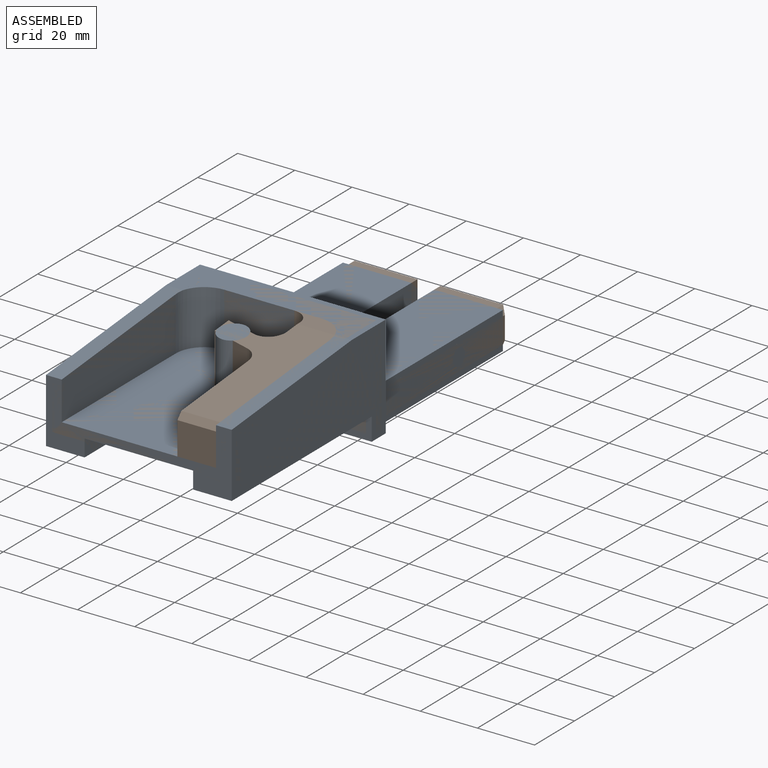
[diagram: assembled view]
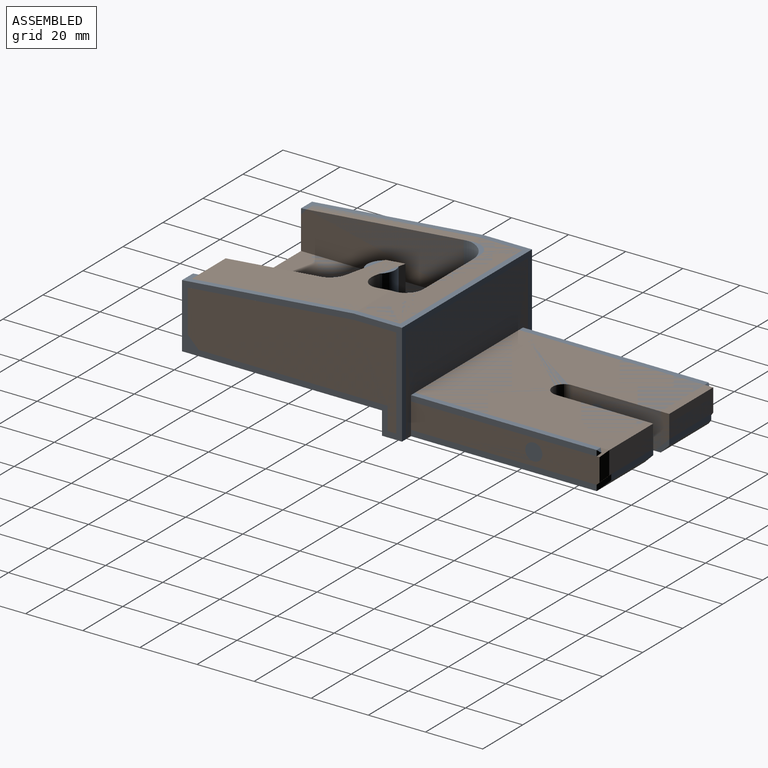
[diagram: assembled view, second angle]
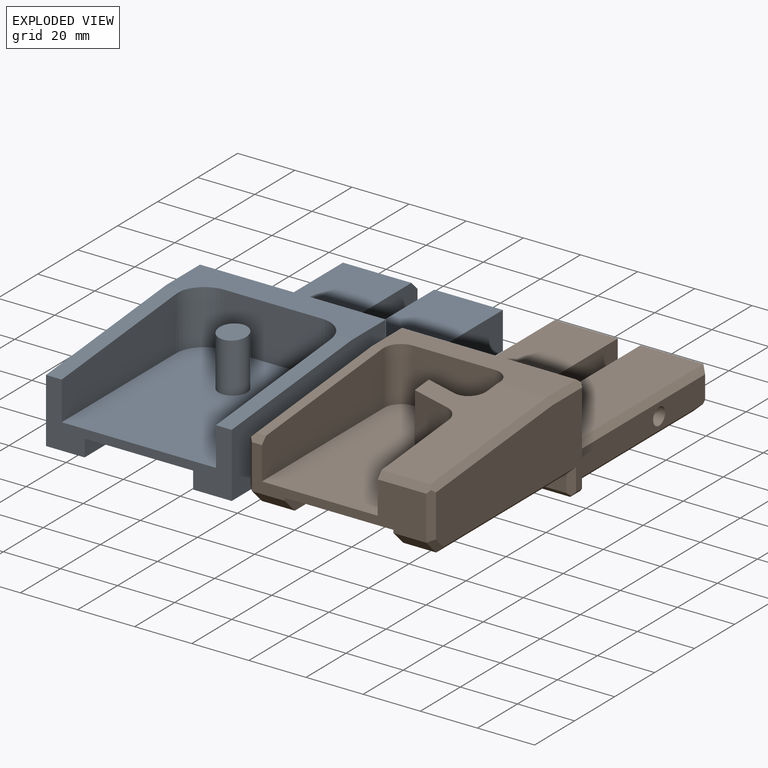
[diagram: exploded view]
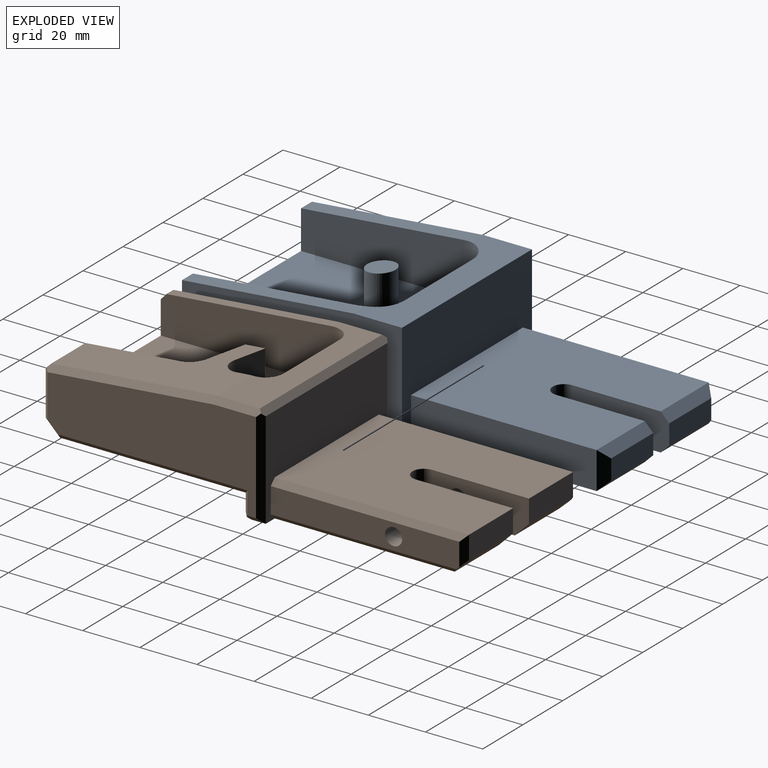
[diagram: exploded view, second angle]
ASSEMBLY  parts=2 mates=3
PART A: 38 faces, bbox 65x145x36 mm
  f0: plane 21x7mm, normal (0,1,0), area 147mm2, adj f3,f4,f28,f32
  f1: plane 72x65mm, normal (0,0,-1), area 3821.9mm2, adj f4,f9,f10,f13,f14,f23,f24,f27
  f2: plane 65x56mm, normal (0,0,1), area 3366.9mm2, adj f3,f10,f23,f24,f26,f31,f32,f33
  f3: plane 24x3mm, normal (0,0.71,0.71), area 95.5mm2, adj f0,f2,f28,f32
  f4: plane 24x3mm, normal (0,0.71,-0.71), area 95.5mm2, adj f0,f1,f28,f32
  f5: plane 21x7mm, normal (0,1,0), area 147mm2, adj f25,f26,f27,f33
  f6: plane 65x17mm, normal (0,0,1), area 769mm2, adj f7,f10,f11,f13,f14,f21,f34,f35
  f7: plane 60x5.96mm, normal (0,-0.09,1), area 331.8mm2, adj f6,f12,f13,f20,f35
  f8: plane 70x65mm, normal (0,0,-1), area 2635.9mm2, adj f9,f12,f13,f14,f15,f16,f17,f36
  f9: plane 65x8mm, normal (0,-1,0), area 520mm2, adj f1,f8,f13,f14
  f10: plane 65x36mm, normal (0,1,0), area 1612mm2, adj f1,f2,f6,f13,f14,f23,f24
  f11: plane 60x5.96mm, normal (0,-0.09,1), area 331.8mm2, adj f6,f12,f14,f19,f34
  f12: plane 65x22.5mm, normal (0,-1,0), area 505.5mm2, adj f7,f8,f11,f13,f14,f15,f17,f18
  f13: plane 77x36mm, normal (1,0,0), area 2047mm2, adj f1,f6,f7,f8,f9,f10,f12
  f14: plane 77x36mm, normal (-1,0,0), area 2047mm2, adj f1,f6,f8,f9,f10,f11,f12
  f15: plane 41.5x6mm, normal (1,0,0), area 249mm2, adj f8,f12,f18,f36
  f16: plane 18x6mm, normal (0,-1,0), area 108mm2, adj f8,f18,f36,f37
  f17: plane 41.5x6mm, normal (-1,0,0), area 249mm2, adj f8,f12,f18,f37
  f18: plane 51.5x38mm, normal (0,0,-1), area 1914.1mm2, adj f12,f15,f16,f17,f36,f37
  f19: plane 57x18.73mm, normal (1,0,0), area 918.4mm2, adj f11,f12,f22,f34
  f20: plane 57x18.73mm, normal (-1,0,0), area 918.4mm2, adj f7,f12,f22,f35
  f21: plane 34x19mm, normal (0,-1,0), area 646mm2, adj f6,f22,f34,f35
  f22: plane 67x54mm, normal (0,0,1), area 3496.5mm2, adj f12,f19,f20,f21,f30,f34,f35
  f23: plane 65x13mm, normal (1,0,0), area 845mm2, adj f1,f2,f10,f28
  f24: plane 65x13mm, normal (-1,0,0), area 845mm2, adj f1,f2,f10,f25
  f25: plane 13x3mm, normal (-0.71,0.71,0), area 42.4mm2, adj f5,f24,f26,f27
  f26: plane 24x3mm, normal (0,0.71,0.71), area 95.5mm2, adj f2,f5,f25,f33
  f27: plane 24x3mm, normal (0,0.71,-0.71), area 95.5mm2, adj f1,f5,f25,f33
  f28: plane 13x3mm, normal (0.71,0.71,0), area 42.4mm2, adj f0,f3,f4,f23
  f29: plane 10x10mm, normal (0,-0.09,1), area 78.9mm2, adj f30
  f30: cylinder r=5mm len=18.27mm, axis (0,0,-1), area 559.5mm2, adj f22,f29
  f31: cylinder r=4mm len=13mm, axis (0,0,-1), area 163.4mm2, adj f1,f2,f32,f33
  f32: plane 34x13mm, normal (-1,0,0), area 433mm2, adj f0,f1,f2,f3,f4,f31
  f33: plane 34x13mm, normal (1,0,0), area 433mm2, adj f1,f2,f5,f26,f27,f31
  f34: cylinder r=10mm len=19mm, axis (0,0,1), area 298mm2, adj f6,f11,f19,f21,f22
  f35: cylinder r=10mm len=19mm, axis (0,0,-1), area 298mm2, adj f6,f7,f20,f21,f22
  f36: cylinder r=10mm len=10mm, axis (0,0,1), area 94.2mm2, adj f8,f15,f16,f18
  f37: cylinder r=10mm len=10mm, axis (0,0,-1), area 94.2mm2, adj f8,f16,f17,f18
PART B: 68 faces, bbox 65.3x145.3x36.3 mm
  f0: plane 65x61mm, normal (0,0,-1), area 2240.9mm2, adj f1,f2,f3,f4,f5,f6,f7,f8
  f1: plane 41.5x6mm, normal (1,0,0), area 236.5mm2, adj f0,f2,f3,f11,f12
  f2: cylinder r=10mm len=10mm, axis (0,0,1), area 94.2mm2, adj f0,f1,f4,f11
  f3: plane 11.5x5mm, normal (0,-0.71,-0.71), area 81.3mm2, adj f0,f1,f12,f13
  f4: plane 18x6mm, normal (0,-1,0), area 108mm2, adj f0,f2,f6,f11
  f5: plane 67x2mm, normal (-0.71,0,-0.71), area 185.5mm2, adj f0,f13,f14,f15
  f6: cylinder r=10mm len=10mm, axis (0,0,1), area 94.2mm2, adj f0,f4,f8,f11
  f7: plane 61x6mm, normal (0,-1,0), area 366mm2, adj f0,f14,f16,f17
  f8: plane 41.5x6mm, normal (-1,0,0), area 236.5mm2, adj f0,f6,f10,f11,f12
  f9: plane 67x2mm, normal (0.71,0,-0.71), area 185.5mm2, adj f0,f17,f18,f19
  f10: plane 11.5x5mm, normal (0,-0.71,-0.71), area 81.3mm2, adj f0,f8,f12,f18
  f11: plane 51.5x38mm, normal (0,0,-1), area 1914.1mm2, adj f1,f2,f4,f6,f8,f12
  f12: plane 61x15.5mm, normal (0,-1,0), area 441.8mm2, adj f1,f3,f8,f10,f11,f20,f21,f22
  f13: plane 5.83x5.83mm, normal (-0.71,-0.5,-0.5), area 17.7mm2, adj f3,f5,f15,f20
  f14: plane 9x2mm, normal (-0.71,-0.71,0), area 21.2mm2, adj f5,f7,f15,f16,f27
  f15: plane 73x32.01mm, normal (-1,0,0), area 1613.5mm2, adj f5,f13,f14,f20,f27,f28,f29,f30
  f16: plane 63x2mm, normal (0,-0.71,-0.71), area 175.4mm2, adj f7,f14,f17,f27,f31,f32
  f17: plane 9x2mm, normal (0.71,-0.71,0), area 21.2mm2, adj f7,f9,f16,f19,f31
  f18: plane 5.83x5.83mm, normal (0.71,-0.5,-0.5), area 17.7mm2, adj f9,f10,f19,f26
  f19: plane 73x32.01mm, normal (1,0,0), area 1614mm2, adj f9,f17,f18,f26,f31,f33,f34,f35
  f20: plane 16.59x2mm, normal (-0.71,-0.71,0), area 44.3mm2, adj f12,f13,f15,f21,f29
  f21: plane 4.5x2.18mm, normal (0,-0.74,0.67), area 11.8mm2, adj f12,f20,f22,f29,f36
  f22: plane 61x19mm, normal (1,0,0), area 992mm2, adj f12,f21,f23,f36,f37,f38
  f23: plane 67x40.5mm, normal (0,0,1), area 2550.6mm2, adj f12,f22,f24,f37,f39,f40,f41,f42
  f24: plane 35.44x16.75mm, normal (-1,0,0), area 534mm2, adj f12,f23,f25,f41,f47
  f25: plane 18x2.18mm, normal (0,-0.74,0.67), area 51.7mm2, adj f12,f24,f26,f35,f47
  f26: plane 16.59x2mm, normal (0.71,-0.71,0), area 44.3mm2, adj f12,f18,f19,f25,f35
  f27: plane 6x2mm, normal (-0.71,0,-0.71), area 12.7mm2, adj f14,f15,f16,f28,f32
  f28: plane 35x2mm, normal (-0.71,0.71,0), area 94.8mm2, adj f15,f27,f30,f48,f49
  f29: plane 59.2x7.34mm, normal (-0.71,-0.06,0.7), area 166.4mm2, adj f15,f20,f21,f30,f36
  f30: plane 16.01x2.01mm, normal (-0.71,0,0.71), area 43.6mm2, adj f15,f28,f29,f38,f49
  f31: plane 6x2mm, normal (0.71,0,-0.71), area 12.7mm2, adj f16,f17,f19,f32,f33
  f32: plane 68x61mm, normal (0,0,-1), area 3323.9mm2, adj f16,f27,f31,f48,f50,f51,f52,f53
  f33: plane 35x2mm, normal (0.71,0.71,0), area 94.8mm2, adj f19,f31,f34,f48,f49
  f34: plane 16.01x2.01mm, normal (0.71,0,0.71), area 43.5mm2, adj f19,f33,f35,f38,f49
  f35: plane 59.2x7.34mm, normal (0.71,-0.06,0.7), area 166.4mm2, adj f19,f25,f26,f34,f47
  f36: plane 58.01x5.32mm, normal (0,-0.09,1), area 203.9mm2, adj f21,f22,f29,f38
  f37: cylinder r=6mm len=19mm, axis (0,0,-1), area 179.1mm2, adj f22,f23,f38,f39
  f38: plane 61x15mm, normal (0,0,1), area 647mm2, adj f22,f30,f34,f36,f37,f39,f40,f42
  f39: plane 28.5x19mm, normal (0,-1,0), area 541.5mm2, adj f23,f37,f38,f40
  f40: cylinder r=6mm len=19mm, axis (0,0,-1), area 179.1mm2, adj f23,f38,f39,f42
  f41: cylinder r=6mm len=17.28mm, axis (0,0,-1), area 133.6mm2, adj f23,f24,f43,f47
  f42: plane 19x6.14mm, normal (-1,0,0), area 115.4mm2, adj f23,f38,f40,f44,f47
  f43: plane 17.63x14.05mm, normal (-0.26,-0.97,0), area 253.9mm2, adj f23,f41,f45,f47
  f44: cylinder r=6mm len=18.53mm, axis (0,0,-1), area 200.8mm2, adj f23,f42,f46,f47
  f45: plane 18.27x7mm, normal (-1,0,0), area 125.6mm2, adj f23,f43,f46,f47
  f46: plane 18.27x10.95mm, normal (0.26,0.97,0), area 205.5mm2, adj f23,f44,f45,f47
  f47: plane 58.35x35.85mm, normal (0,-0.09,1), area 1138.4mm2, adj f24,f25,f35,f38,f41,f42,f43,f44
  f48: plane 61x34mm, normal (0,1,0), area 1354mm2, adj f28,f32,f33,f49,f51,f56,f57,f58
  f49: plane 63x2mm, normal (0,0.71,0.71), area 175.4mm2, adj f28,f30,f33,f34,f38,f48
  f50: plane 24x5mm, normal (0,0.71,-0.71), area 164mm2, adj f32,f51,f52,f57,f60,f61
  f51: plane 65x2mm, normal (-0.71,0,-0.71), area 181mm2, adj f32,f48,f50,f57
  f52: plane 34x13mm, normal (1,0,0), area 401.2mm2, adj f32,f50,f53,f59,f60,f62
  f53: cylinder r=4mm len=13mm, axis (0,0,-1), area 163.4mm2, adj f32,f52,f54,f59
  f54: plane 34x13mm, normal (-1,0,0), area 401.2mm2, adj f32,f53,f55,f59,f63,f64
  f55: plane 24x5mm, normal (0,0.71,-0.71), area 164mm2, adj f32,f54,f56,f63,f65,f66
  f56: plane 65x2mm, normal (0.71,0,-0.71), area 181mm2, adj f32,f48,f55,f65
  f57: plane 66x9mm, normal (-1,0,0), area 565.2mm2, adj f48,f50,f51,f58,f61,f62
  f58: plane 68x2mm, normal (-0.71,0,0.71), area 189.5mm2, adj f48,f57,f59,f61
  f59: plane 68x52mm, normal (0,0,1), area 3238.9mm2, adj f48,f52,f53,f54,f58,f60,f63,f67
  f60: plane 22x8mm, normal (0,1,0), area 176mm2, adj f50,f52,f59,f61
  f61: plane 10x2mm, normal (-0.71,0.71,0), area 22.6mm2, adj f50,f57,f58,f60
  f62: cylinder r=3mm len=24mm, axis (1,0,0), area 452.4mm2, adj f52,f57
  f63: plane 22x8mm, normal (0,1,0), area 176mm2, adj f54,f55,f59,f66
  f64: cylinder r=3mm len=24mm, axis (1,0,0), area 452.4mm2, adj f54,f65
  f65: plane 66x9mm, normal (1,0,0), area 565.2mm2, adj f48,f55,f56,f64,f66,f67
  f66: plane 10x2mm, normal (0.71,0.71,0), area 22.6mm2, adj f55,f63,f65,f67
  f67: plane 68x2mm, normal (0.71,0,0.71), area 189.5mm2, adj f48,f59,f65,f66
PLACE A t=(14.25,37.45,-1.11)mm
PLACE B t=(-18.25,-32.55,34.89)mm
MATE planar A.f13 <-> B.f19  axis (1,0,0) through (46.75,8.4,19.42)mm
MATE planar B.f12 <-> A.f12  axis (0,-1,0) through (27.75,-32.55,21.64)mm
MATE planar B.f32 <-> A.f1  axis (0,0,-1) through (14.25,71.64,-1.11)mm
